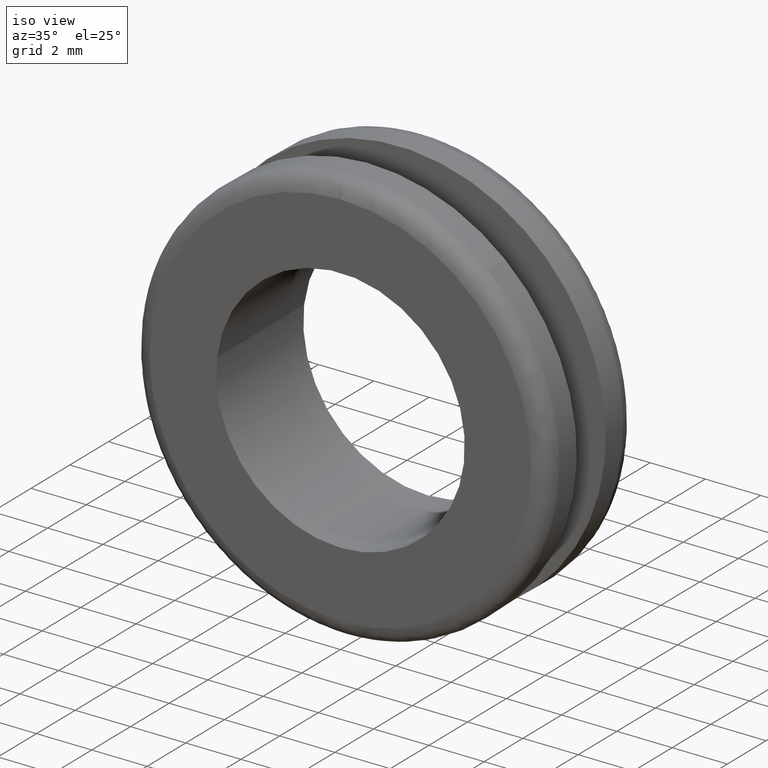
[diagram: clean part render]
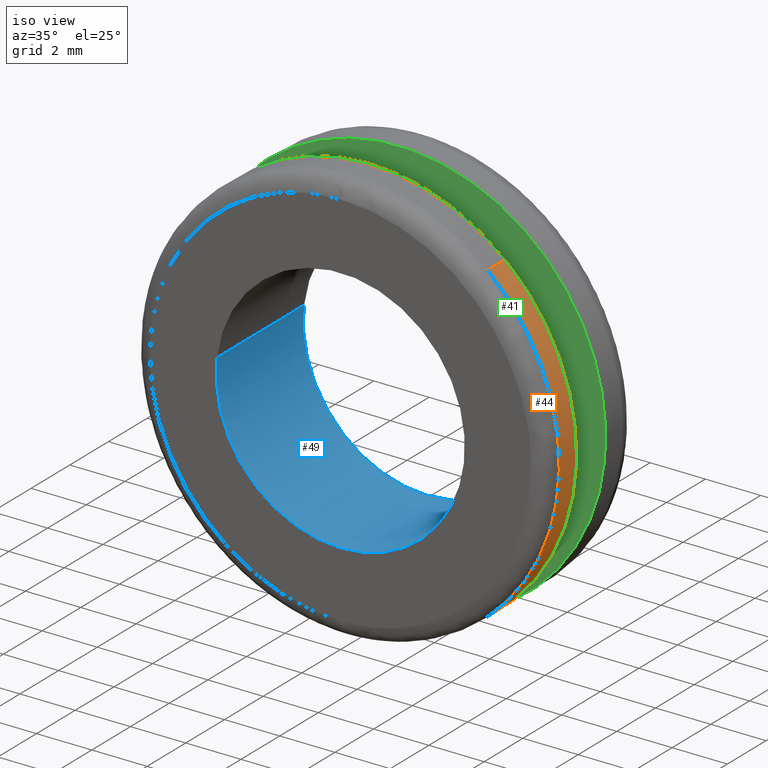
[diagram: same view with three faces highlighted in distinct colors, each labeled with its STEP entity id]
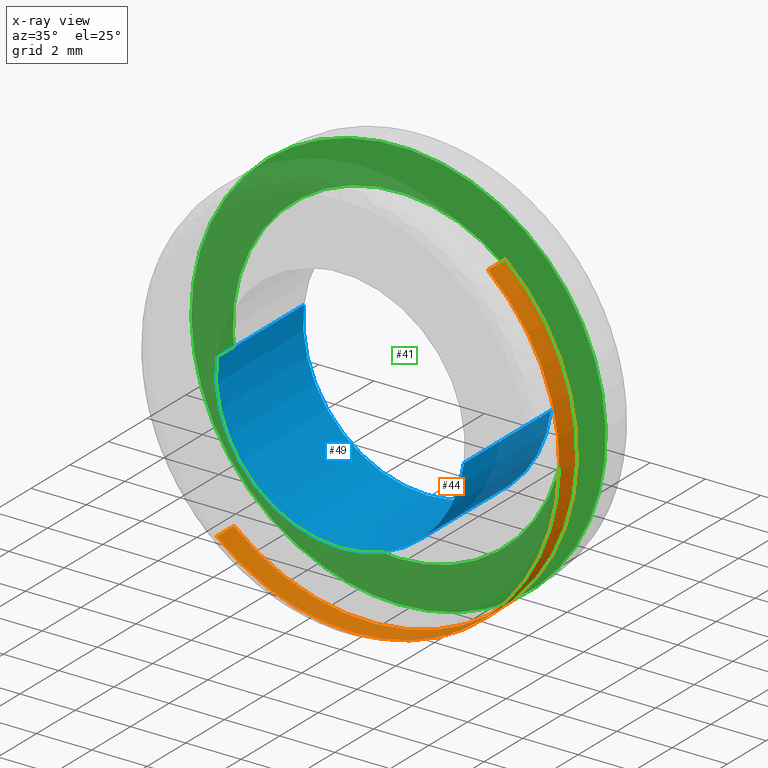
[diagram: x-ray of the same camera — body ghosted, the three highlighted faces saturated]
A machine part, iso view with three faces highlighted in distinct colors.
The next image is the same camera in x-ray (body ghosted, the three faces saturated) — at least one of them is partly hidden behind the body in this view.
Their STEP definitions:

[orange] entity #44 — the highlighted cylindrical surface (partial cylindrical patch) has radius 7.5 mm, axis along (-0, 1, -0).
#44=ADVANCED_FACE('',(#101),#100,.T.);
#100=CYLINDRICAL_SURFACE('',#247,7.50000000000E+000);
#101=FACE_OUTER_BOUND('',#248,.T.);
#244=CARTESIAN_POINT('',(8.76113127755E-016,1.52250000000E+000,2.83363811710E-016));
#245=DIRECTION('',(-2.55198190382E-017,1.00000000000E+000,-1.70686385160E-017));
#246=DIRECTION('',(6.54339657003E-001,2.96059473233E-017,7.56200775769E-001));
#247=AXIS2_PLACEMENT_3D('',#244,#245,#246);
#248=EDGE_LOOP('',(#411,#412,#413,#414,#415,#416));
#411=ORIENTED_EDGE('',*,*,#481,.T.);
#412=ORIENTED_EDGE('',*,*,#503,.F.);
#413=ORIENTED_EDGE('',*,*,#504,.F.);
#414=ORIENTED_EDGE('',*,*,#505,.F.);
#415=ORIENTED_EDGE('',*,*,#506,.F.);
#416=ORIENTED_EDGE('',*,*,#507,.T.);
#481=EDGE_CURVE('',#534,#526,#535,.T.);
#503=EDGE_CURVE('',#687,#526,#688,.T.);
#504=EDGE_CURVE('',#694,#687,#695,.T.);
#505=EDGE_CURVE('',#701,#694,#702,.T.);
#506=EDGE_CURVE('',#708,#701,#709,.T.);
#507=EDGE_CURVE('',#708,#534,#715,.T.);
#526=VERTEX_POINT('',#836);
#534=VERTEX_POINT('',#842);
#535=CIRCLE('',#846,7.50000042183E+000);
#687=VERTEX_POINT('',#951);
#688=(BOUNDED_CURVE() B_SPLINE_CURVE(1,(#952,#953),.UNSPECIFIED.,.F.,.F.) B_SPLINE_CURVE_WITH_KNOTS((2,2),(8.33333730703E-002,9.16666640476E-001),.UNSPECIFIED.) CURVE() GEOMETRIC_REPRESENTATION_ITEM() RATIONAL_B_SPLINE_CURVE((1.00000000000E+000,1.00000000000E+000)) REPRESENTATION_ITEM('') );
#694=VERTEX_POINT('',#954);
#695=CIRCLE('',#958,7.50000000000E+000);
#701=VERTEX_POINT('',#959);
#702=CIRCLE('',#963,7.50000000000E+000);
#708=VERTEX_POINT('',#964);
#709=CIRCLE('',#968,7.50000000000E+000);
#715=(BOUNDED_CURVE() B_SPLINE_CURVE(1,(#969,#970),.UNSPECIFIED.,.F.,.F.) B_SPLINE_CURVE_WITH_KNOTS((2,2),(8.33333333522E-002,9.16666666667E-001),.UNSPECIFIED.) CURVE() GEOMETRIC_REPRESENTATION_ITEM() RATIONAL_B_SPLINE_CURVE((7.50000000000E-001,7.50000000000E-001)) REPRESENTATION_ITEM('') );
#836=CARTESIAN_POINT('',(4.90754797954E+000,1.50000000000E+000,5.67150645626E+000));
#842=CARTESIAN_POINT('',(-4.90737898492E+000,1.50000000000E+000,-5.67165156708E+000));
#843=CARTESIAN_POINT('',(1.57169293136E-007,1.50000000000E+000,4.21831123809E-007));
#844=DIRECTION('',(2.36484451285E-017,-1.00000000000E+000,4.36443828221E-015));
#845=DIRECTION('',(-6.75590207414E-001,3.20182477624E-015,7.37277336995E-001));
#846=AXIS2_PLACEMENT_3D('',#843,#844,#845);
#951=CARTESIAN_POINT('',(4.90754836332E+000,6.00000002485E-001,5.67150500852E+000));
#952=CARTESIAN_POINT('',(4.90754742752E+000,6.00000042875E-001,5.67150581827E+000));
#953=CARTESIAN_POINT('',(4.90754742752E+000,1.49999997171E+000,5.67150581827E+000));
#954=CARTESIAN_POINT('',(7.49763141962E+000,5.99999999959E-001,-1.88475715825E-001));
#955=CARTESIAN_POINT('',(-3.10862446895E-015,5.99999999931E-001,-3.10862446895E-015));
#956=DIRECTION('',(1.46336907344E-011,-1.00000000000E+000,4.37635655969E-010));
#957=DIRECTION('',(-9.99684189283E-001,-3.63124345408E-012,2.51300954434E-002));
#958=AXIS2_PLACEMENT_3D('',#955,#956,#957);
#959=CARTESIAN_POINT('',(1.91526861901E-015,6.00000000000E-001,-7.50000000000E+000));
#960=CARTESIAN_POINT('',(-1.50990331349E-013,5.99999999958E-001,1.54543045028E-013));
#961=DIRECTION('',(-5.23364152895E-018,-1.00000000000E+000,-5.64450708396E-012));
#962=DIRECTION('',(-2.01320441799E-014,-5.64450708396E-012,1.00000000000E+000));
#963=AXIS2_PLACEMENT_3D('',#960,#961,#962);
#964=CARTESIAN_POINT('',(-4.90754718277E+000,6.00000000000E-001,-5.67150603005E+000));
#965=CARTESIAN_POINT('',(-1.50990331349E-013,5.99999999958E-001,1.54543045028E-013));
#966=DIRECTION('',(-5.23364152895E-018,-1.00000000000E+000,-5.64450708396E-012));
#967=DIRECTION('',(-2.01320441799E-014,-5.64450708396E-012,1.00000000000E+000));
#968=AXIS2_PLACEMENT_3D('',#965,#966,#967);
#969=CARTESIAN_POINT('',(-4.90754742752E+000,5.99999999979E-001,-5.67150581827E+000));
#970=CARTESIAN_POINT('',(-4.90754742752E+000,1.50000000000E+000,-5.67150581827E+000));

[blue] entity #49 — the highlighted cylindrical surface (partial cylindrical patch) has radius 4.5 mm, axis along (-0, 1, 0).
#49=ADVANCED_FACE('',(#151),#150,.F.);
#150=CYLINDRICAL_SURFACE('',#272,4.50000000000E+000);
#151=FACE_OUTER_BOUND('',#273,.T.);
#269=CARTESIAN_POINT('',(8.41911254280E-017,4.61250000000E+000,5.75740383094E-016));
#270=DIRECTION('',(-6.34528310202E-017,1.00000000000E+000,3.02261674367E-016));
#271=DIRECTION('',(-9.93009526364E-001,-9.86864910778E-017,1.18034234657E-001));
#272=AXIS2_PLACEMENT_3D('',#269,#270,#271);
#273=EDGE_LOOP('',(#438,#439,#440,#441,#442,#443));
#438=ORIENTED_EDGE('',*,*,#495,.F.);
#439=ORIENTED_EDGE('',*,*,#497,.F.);
#440=ORIENTED_EDGE('',*,*,#513,.F.);
#441=ORIENTED_EDGE('',*,*,#500,.T.);
#442=ORIENTED_EDGE('',*,*,#502,.T.);
#443=ORIENTED_EDGE('',*,*,#514,.T.);
#495=EDGE_CURVE('',#631,#632,#633,.T.);
#497=EDGE_CURVE('',#639,#631,#646,.T.);
#500=EDGE_CURVE('',#666,#667,#668,.T.);
#502=EDGE_CURVE('',#667,#674,#681,.T.);
#513=EDGE_CURVE('',#666,#639,#753,.T.);
#514=EDGE_CURVE('',#674,#632,#759,.T.);
#631=VERTEX_POINT('',#911);
#632=VERTEX_POINT('',#912);
#633=CIRCLE('',#916,4.50000000000E+000);
#639=VERTEX_POINT('',#917);
#646=CIRCLE('',#925,4.50000000000E+000);
#666=VERTEX_POINT('',#936);
#667=VERTEX_POINT('',#937);
#668=CIRCLE('',#941,4.50000000000E+000);
#674=VERTEX_POINT('',#942);
#681=CIRCLE('',#950,4.50000000000E+000);
#753=(BOUNDED_CURVE() B_SPLINE_CURVE(1,(#989,#990),.UNSPECIFIED.,.F.,.F.) B_SPLINE_CURVE_WITH_KNOTS((2,2),(8.33333313467E-002,9.16666670832E-001),.UNSPECIFIED.) CURVE() GEOMETRIC_REPRESENTATION_ITEM() RATIONAL_B_SPLINE_CURVE((1.00000000000E+000,1.00000000000E+000)) REPRESENTATION_ITEM('') );
#759=(BOUNDED_CURVE() B_SPLINE_CURVE(1,(#991,#992),.UNSPECIFIED.,.F.,.F.) B_SPLINE_CURVE_WITH_KNOTS((2,2),(8.33333333333E-002,9.16666666666E-001),.UNSPECIFIED.) CURVE() GEOMETRIC_REPRESENTATION_ITEM() RATIONAL_B_SPLINE_CURVE((7.50000000000E-001,7.50000000000E-001)) REPRESENTATION_ITEM('') );
#911=CARTESIAN_POINT('',(-1.11022302463E-015,4.50000000000E+000,-4.49999999999E+000));
#912=CARTESIAN_POINT('',(4.46845099907E+000,4.50000000000E+000,-5.31926375409E-001));
#913=CARTESIAN_POINT('',(1.73461245367E-012,4.50000000000E+000,3.81872311550E-012));
#914=DIRECTION('',(1.42520898135E-014,-1.00000000000E+000,9.81640428715E-014));
#915=DIRECTION('',(-3.85372289635E-013,-9.81640428715E-014,-1.00000000000E+000));
#916=AXIS2_PLACEMENT_3D('',#913,#914,#915);
#917=CARTESIAN_POINT('',(-4.46854306287E+000,4.50000000000E+000,5.31152421835E-001));
#922=CARTESIAN_POINT('',(1.73461245367E-012,4.50000000000E+000,3.81872311550E-012));
#923=DIRECTION('',(1.42520898135E-014,-1.00000000000E+000,9.81640428715E-014));
#924=DIRECTION('',(-3.85372289635E-013,-9.81640428715E-014,-1.00000000000E+000));
#925=AXIS2_PLACEMENT_3D('',#922,#923,#924);
#936=CARTESIAN_POINT('',(-4.46854306287E+000,-4.96971469233E-016,5.31152421835E-001));
#937=CARTESIAN_POINT('',(-2.88657986403E-015,2.17505299422E-015,-4.49999999999E+000));
#938=CARTESIAN_POINT('',(1.69242397874E-012,-5.79362080859E-016,3.72790687209E-012));
#939=DIRECTION('',(-9.11941276993E-017,-1.00000000000E+000,-6.12092238906E-016));
#940=DIRECTION('',(-3.76351727560E-013,6.12092238906E-016,-1.00000000000E+000));
#941=AXIS2_PLACEMENT_3D('',#938,#939,#940);
#942=CARTESIAN_POINT('',(4.46845099907E+000,-6.61270565827E-016,-5.31926375409E-001));
#947=CARTESIAN_POINT('',(1.69242397874E-012,-5.79362080859E-016,3.72790687209E-012));
#948=DIRECTION('',(-9.11941276993E-017,-1.00000000000E+000,-6.12092238906E-016));
#949=DIRECTION('',(-3.76351727560E-013,6.12092238906E-016,-1.00000000000E+000));
#950=AXIS2_PLACEMENT_3D('',#947,#948,#949);
#989=CARTESIAN_POINT('',(-4.46854286864E+000,-1.07279402584E-008,5.31154055955E-001));
#990=CARTESIAN_POINT('',(-4.46854286864E+000,4.50000002249E+000,5.31154055955E-001));
#991=CARTESIAN_POINT('',(4.46854286864E+000,3.70074341542E-016,-5.31154055955E-001));
#992=CARTESIAN_POINT('',(4.46854286864E+000,4.50000000000E+000,-5.31154055955E-001));

[green] entity #41 — the highlighted planar face has unit normal (0, 1, 0).
#41=ADVANCED_FACE('',(#68,#69),#67,.F.);
#67=PLANE('',#229);
#68=FACE_OUTER_BOUND('',#230,.T.);
#69=FACE_BOUND('',#231,.T.);
#226=CARTESIAN_POINT('',(-1.55884572681E+001,3.00000000000E+000,-9.74999999995E+000));
#227=DIRECTION('',(0.00000000000E+000,1.00000000000E+000,0.00000000000E+000));
#228=DIRECTION('',(0.00000000000E+000,0.00000000000E+000,1.00000000000E+000));
#229=AXIS2_PLACEMENT_3D('',#226,#227,#228);
#230=EDGE_LOOP('',(#394,#395,#396));
#231=EDGE_LOOP('',(#397,#398,#399));
#394=ORIENTED_EDGE('',*,*,#486,.T.);
#395=ORIENTED_EDGE('',*,*,#487,.T.);
#396=ORIENTED_EDGE('',*,*,#488,.T.);
#397=ORIENTED_EDGE('',*,*,#489,.F.);
#398=ORIENTED_EDGE('',*,*,#490,.F.);
#399=ORIENTED_EDGE('',*,*,#491,.F.);
#486=EDGE_CURVE('',#568,#569,#570,.T.);
#487=EDGE_CURVE('',#569,#576,#577,.T.);
#488=EDGE_CURVE('',#576,#568,#583,.T.);
#489=EDGE_CURVE('',#589,#590,#591,.T.);
#490=EDGE_CURVE('',#597,#589,#598,.T.);
#491=EDGE_CURVE('',#590,#597,#604,.T.);
#568=VERTEX_POINT('',#866);
#569=VERTEX_POINT('',#867);
#570=CIRCLE('',#871,7.49999999998E+000);
#576=VERTEX_POINT('',#872);
#577=CIRCLE('',#876,7.49999999998E+000);
#583=CIRCLE('',#880,7.49999999998E+000);
#589=VERTEX_POINT('',#881);
#590=VERTEX_POINT('',#882);
#591=CIRCLE('',#886,6.00000000000E+000);
#597=VERTEX_POINT('',#887);
#598=CIRCLE('',#891,6.00000000000E+000);
#604=CIRCLE('',#895,6.00000000000E+000);
#866=CARTESIAN_POINT('',(-3.55271367880E-015,3.00000000000E+000,-7.49999999996E+000));
#867=CARTESIAN_POINT('',(2.63668732721E+000,3.00000000000E+000,7.02124489948E+000));
#868=CARTESIAN_POINT('',(6.28386231938E-014,3.00000000000E+000,2.09210426760E-011));
#869=DIRECTION('',(3.64852299781E-016,-1.00000000000E+000,3.53151034214E-015));
#870=DIRECTION('',(-8.38218383592E-015,-3.53151034214E-015,-1.00000000000E+000));
#871=AXIS2_PLACEMENT_3D('',#868,#869,#870);
#872=CARTESIAN_POINT('',(-2.63713485361E+000,3.00000000000E+000,-7.02107682362E+000));
#873=CARTESIAN_POINT('',(6.28386231938E-014,3.00000000000E+000,2.09210426760E-011));
#874=DIRECTION('',(3.64852299781E-016,-1.00000000000E+000,3.53151034214E-015));
#875=DIRECTION('',(-8.38218383592E-015,-3.53151034214E-015,-1.00000000000E+000));
#876=AXIS2_PLACEMENT_3D('',#873,#874,#875);
#877=CARTESIAN_POINT('',(6.28386231938E-014,3.00000000000E+000,2.09210426760E-011));
#878=DIRECTION('',(3.64852299781E-016,-1.00000000000E+000,3.53151034214E-015));
#879=DIRECTION('',(-8.38218383592E-015,-3.53151034214E-015,-1.00000000000E+000));
#880=AXIS2_PLACEMENT_3D('',#877,#878,#879);
#881=CARTESIAN_POINT('',(-5.95805715818E+000,3.00000000000E+000,7.08205407902E-001));
#882=CARTESIAN_POINT('',(-2.33146835171E-015,3.00000000000E+000,-5.99999999999E+000));
#883=CARTESIAN_POINT('',(2.02504679692E-012,3.00000000000E+000,4.45554704243E-012));
#884=DIRECTION('',(0.00000000000E+000,-1.00000000000E+000,-0.00000000000E+000));
#885=DIRECTION('',(-3.37521677274E-013,0.00000000000E+000,-1.00000000000E+000));
#886=AXIS2_PLACEMENT_3D('',#883,#884,#885);
#887=CARTESIAN_POINT('',(5.95793466628E+000,3.00000000000E+000,-7.09235160062E-001));
#888=CARTESIAN_POINT('',(2.02504679692E-012,3.00000000000E+000,4.45554704243E-012));
#889=DIRECTION('',(0.00000000000E+000,-1.00000000000E+000,-0.00000000000E+000));
#890=DIRECTION('',(-3.37521677274E-013,0.00000000000E+000,-1.00000000000E+000));
#891=AXIS2_PLACEMENT_3D('',#888,#889,#890);
#892=CARTESIAN_POINT('',(2.02504679692E-012,3.00000000000E+000,4.45554704243E-012));
#893=DIRECTION('',(0.00000000000E+000,-1.00000000000E+000,-0.00000000000E+000));
#894=DIRECTION('',(-3.37521677274E-013,0.00000000000E+000,-1.00000000000E+000));
#895=AXIS2_PLACEMENT_3D('',#892,#893,#894);